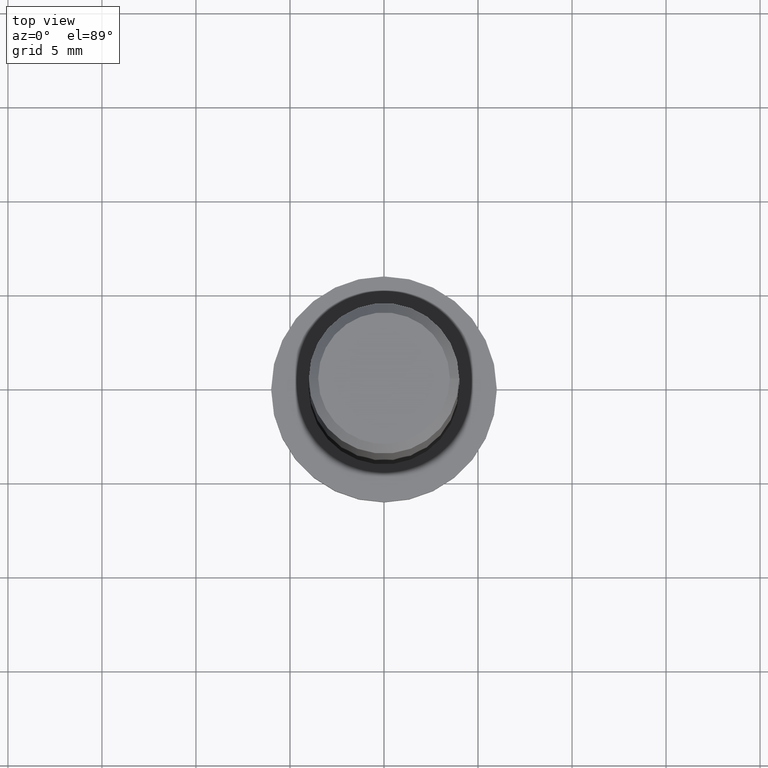
[diagram: clean part render]
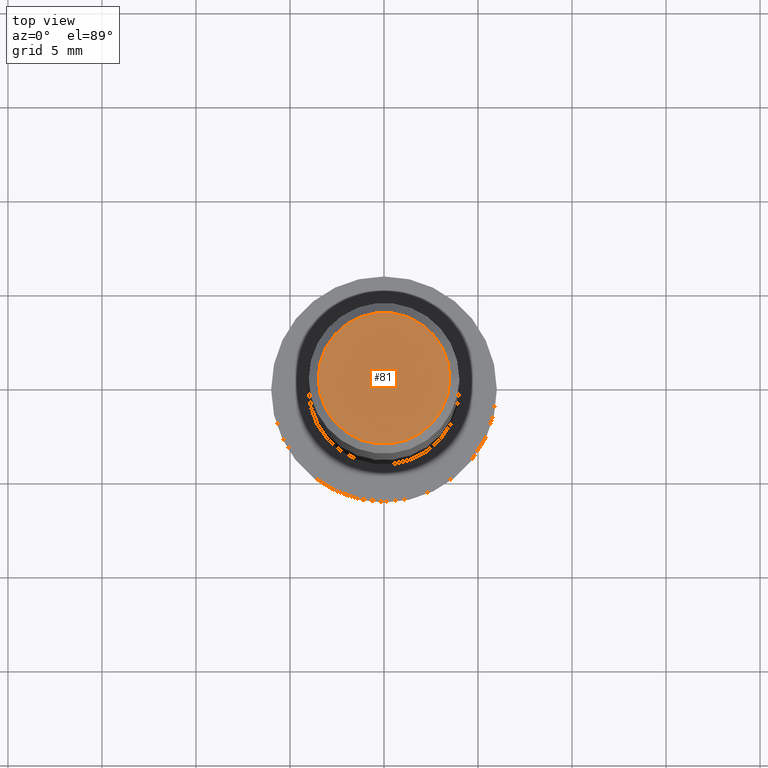
[diagram: same view with one face highlighted and labeled with its STEP entity id]
A machine part, top view. The second image highlights one B-rep face of the part: STEP entity #81.
In plain terms, the highlighted planar face has unit normal (0, 0, 1).
Its self-contained STEP definition (entity closure, byte-faithful):
#19=PLANE('',#96);
#31=FACE_OUTER_BOUND('',#42,.T.);
#42=EDGE_LOOP('',(#72));
#49=CIRCLE('',#93,3.5);
#55=VERTEX_POINT('',#139);
#61=EDGE_CURVE('',#55,#55,#49,.T.);
#72=ORIENTED_EDGE('',*,*,#61,.F.);
#81=ADVANCED_FACE('',(#31),#19,.T.);
#93=AXIS2_PLACEMENT_3D('',#140,#116,#117);
#96=AXIS2_PLACEMENT_3D('',#144,#122,#123);
#116=DIRECTION('center_axis',(0.,0.,-1.));
#117=DIRECTION('ref_axis',(-1.,0.,0.));
#122=DIRECTION('center_axis',(0.,0.,1.));
#123=DIRECTION('ref_axis',(1.,0.,0.));
#139=CARTESIAN_POINT('',(3.5,-4.28626379701574E-16,34.25));
#140=CARTESIAN_POINT('Origin',(0.,0.,34.25));
#144=CARTESIAN_POINT('Origin',(-2.72118023435153E-16,0.,34.25));